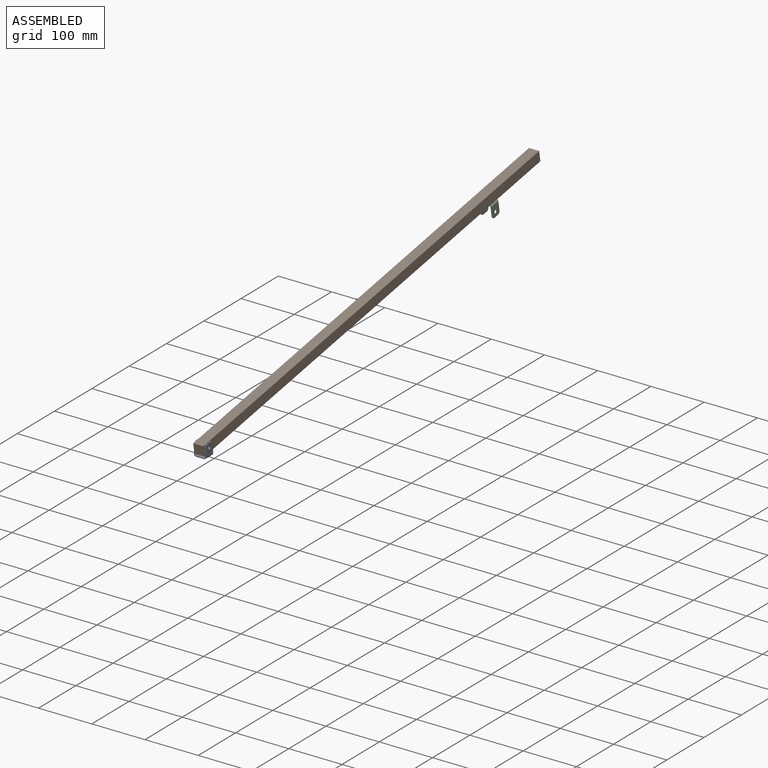
[diagram: assembled view]
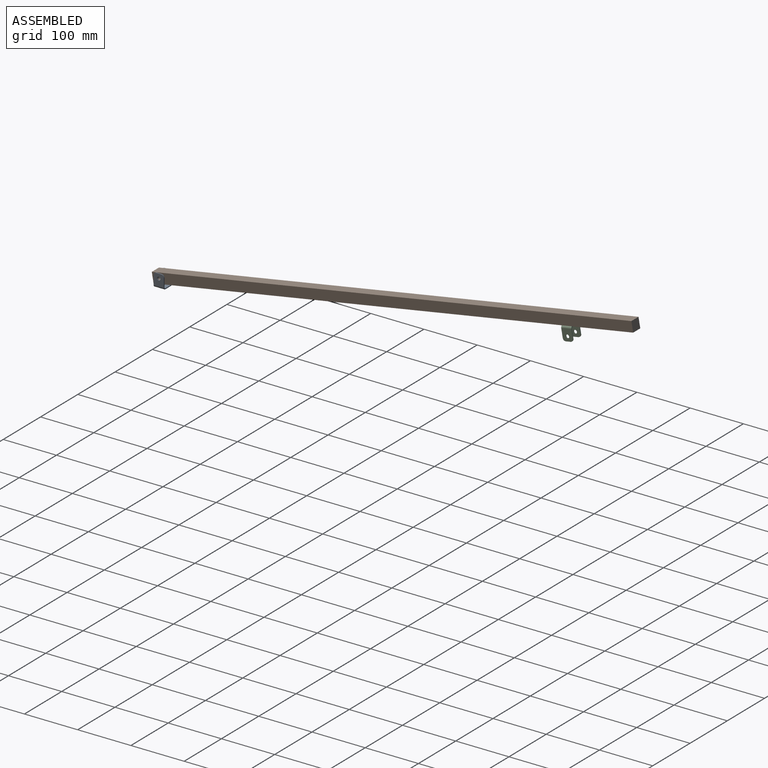
[diagram: assembled view, second angle]
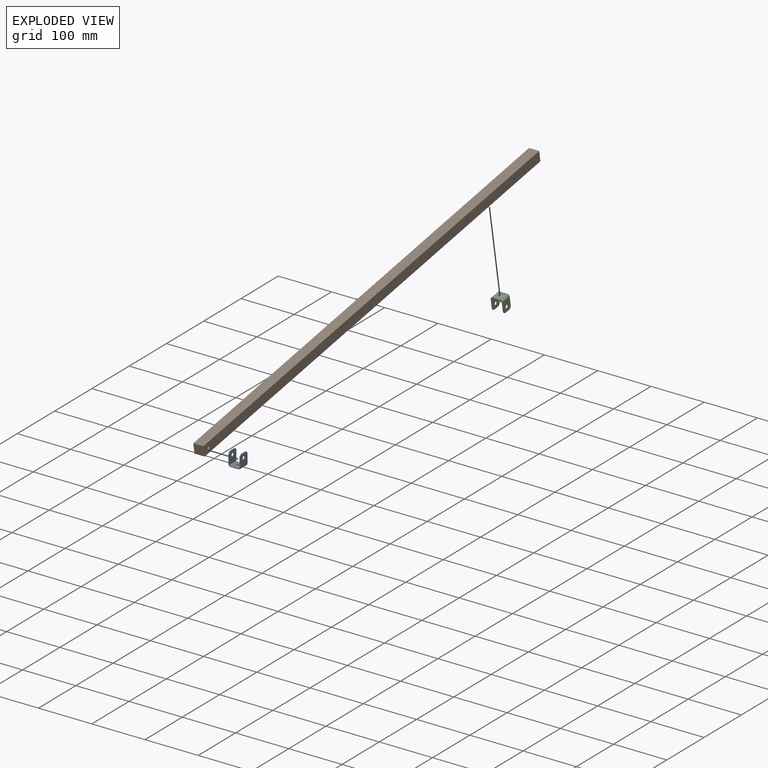
[diagram: exploded view]
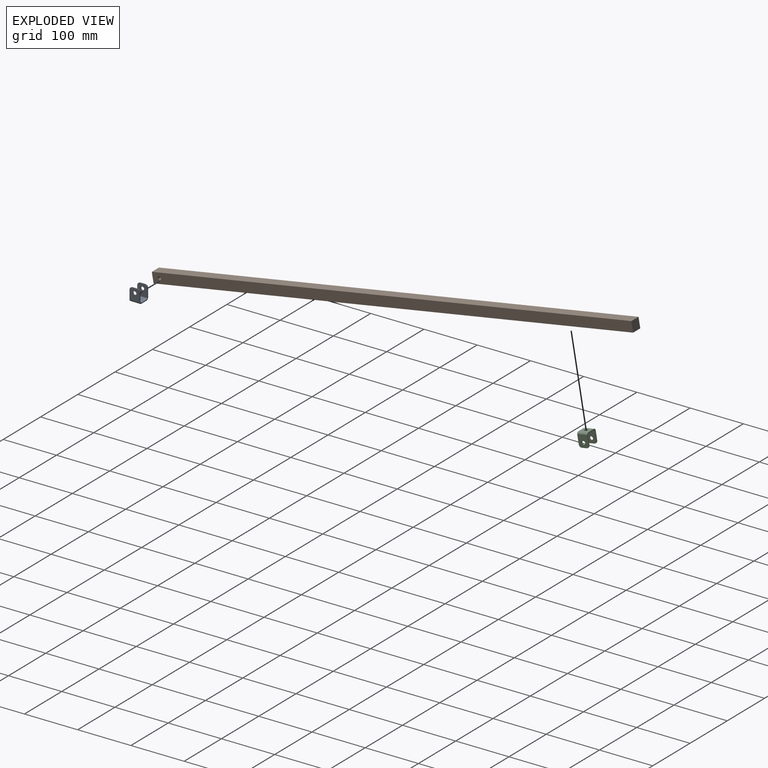
[diagram: exploded view, second angle]
ASSEMBLY  parts=3 mates=2
PART A: 29 faces, bbox 22.4x19.3x25.4 mm
  f0: plane 14.73x1.52mm, normal (0,1,0), area 22.5mm2, adj f3,f4,f13,f25
  f1: plane 14.73x1.52mm, normal (0,-1,0), area 22.5mm2, adj f3,f4,f14,f26
  f2: cylinder r=3.17mm len=6.35mm, axis (0,0,1), area 30.4mm2, adj f3,f4
  f3: plane 19.3x14.73mm, normal (0,0,-1), area 252.7mm2, adj f0,f1,f2,f15,f27
  f4: plane 19.3x14.73mm, normal (0,0,1), area 252.7mm2, adj f0,f1,f2,f16,f28
  f5: plane 9.14x1.52mm, normal (0,0,1), area 13.9mm2, adj f9,f10,f11,f12
  f6: plane 16.51x1.52mm, normal (0,-1,0), area 25.2mm2, adj f9,f10,f12,f14
  f7: cylinder r=3.17mm len=6.35mm, axis (1,0,0), area 30.4mm2, adj f9,f10
  f8: plane 16.51x1.52mm, normal (0,1,0), area 25.2mm2, adj f9,f10,f11,f13
  f9: plane 21.59x19.3mm, normal (1,0,0), area 374mm2, adj f5,f6,f7,f8,f11,f12,f15
  f10: plane 21.59x19.3mm, normal (-1,0,0), area 374mm2, adj f5,f6,f7,f8,f11,f12,f16
  f11: cylinder r=5.08mm len=5.08mm, axis (1,0,0), area 12.2mm2, adj f5,f8,f9,f10
  f12: cylinder r=5.08mm len=5.08mm, axis (1,0,0), area 12.2mm2, adj f5,f6,f9,f10
  f13: plane 3.81x3.81mm, normal (0,1,0), area 7.3mm2, adj f0,f8,f15,f16
  f14: plane 3.81x3.81mm, normal (0,-1,0), area 7.3mm2, adj f1,f6,f15,f16
  f15: cylinder r=3.81mm len=19.3mm, axis (0,1,0), area 115.5mm2, adj f3,f9,f13,f14
  f16: cylinder r=2.29mm len=19.3mm, axis (0,1,0), area 69.3mm2, adj f4,f10,f13,f14
  f17: plane 9.14x1.52mm, normal (0,0,1), area 13.9mm2, adj f21,f22,f23,f24
  f18: plane 16.51x1.52mm, normal (0,1,0), area 25.2mm2, adj f21,f22,f23,f25
  f19: cylinder r=3.17mm len=6.35mm, axis (-1,0,0), area 30.4mm2, adj f21,f22
  f20: plane 16.51x1.52mm, normal (0,-1,0), area 25.2mm2, adj f21,f22,f24,f26
  f21: plane 21.59x19.3mm, normal (-1,0,0), area 374mm2, adj f17,f18,f19,f20,f23,f24,f27
  f22: plane 21.59x19.3mm, normal (1,0,0), area 374mm2, adj f17,f18,f19,f20,f23,f24,f28
  f23: cylinder r=5.08mm len=5.08mm, axis (-1,0,0), area 12.2mm2, adj f17,f18,f21,f22
  f24: cylinder r=5.08mm len=5.08mm, axis (-1,0,0), area 12.2mm2, adj f17,f20,f21,f22
  f25: plane 3.81x3.81mm, normal (0,1,0), area 7.3mm2, adj f0,f18,f27,f28
  f26: plane 3.81x3.81mm, normal (0,-1,0), area 7.3mm2, adj f1,f20,f27,f28
  f27: cylinder r=3.81mm len=19.3mm, axis (0,1,0), area 115.5mm2, adj f3,f21,f25,f26
  f28: cylinder r=2.29mm len=19.3mm, axis (0,1,0), area 69.3mm2, adj f4,f22,f25,f26
PART B: 9 faces, bbox 19.1x914.4x19.1 mm
  f0: plane 914.4x19.05mm, normal (0,0,-1), area 17414.3mm2, adj f1,f3,f4,f5,f7
  f1: plane 914.4x19.05mm, normal (1,0,0), area 17387.7mm2, adj f0,f2,f4,f5,f6
  f2: plane 914.4x19.05mm, normal (0,0,1), area 17419.3mm2, adj f1,f3,f4,f5
  f3: plane 914.4x19.05mm, normal (-1,0,0), area 17387.7mm2, adj f0,f2,f4,f5,f6
  f4: plane 19.05x19.05mm, normal (0,-1,0), area 362.9mm2, adj f0,f1,f2,f3
  f5: plane 19.05x19.05mm, normal (0,1,0), area 362.9mm2, adj f0,f1,f2,f3
  f6: cylinder r=3.17mm len=19.05mm, axis (1,0,0), area 380mm2, adj f1,f3
  f7: cylinder r=1.27mm len=12.7mm, axis (0,0,-1), area 101.3mm2, adj f0,f8
  f8: plane 2.54x2.54mm, normal (0,0,-1), area 5.1mm2, adj f7
PART C: same geometry as A
PLACE A at identity
PLACE B rot(axis=(1,0,0),9.9deg) t=(0,437.88,93.38)mm
PLACE C rot(axis=(0,1,0.09),180deg) t=(0,764.79,140.79)mm
MATE revolute B.f6 <-> A.f7  axis (1,0,0) through (9.52,0,16.92)mm
MATE fastened B.f7 <-> C.f2  axis (0,0.17,-0.99) through (0,764.79,140.79)mm
